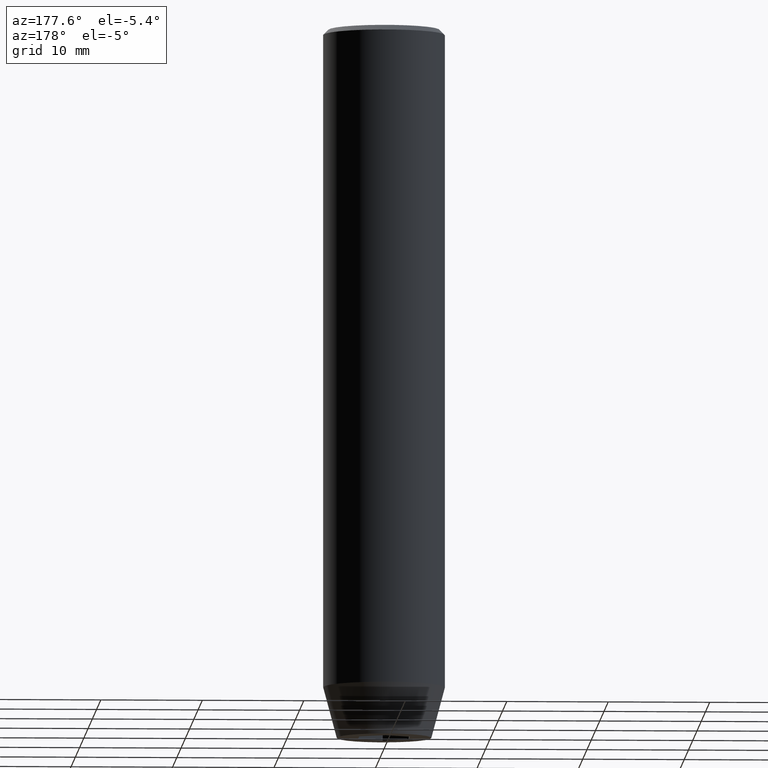
[diagram: clean part render]
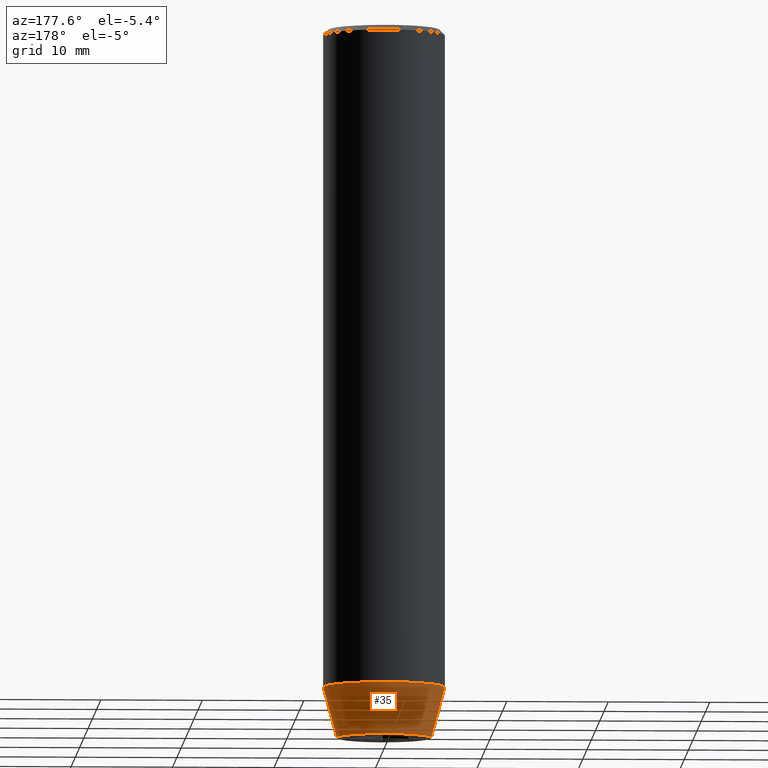
[diagram: same view with one face highlighted and labeled with its STEP entity id]
A machine part, auxiliary view. The second image highlights one B-rep face of the part: STEP entity #35.
In plain terms, the highlighted conical surface has half-angle 15 deg.
Its self-contained STEP definition (entity closure, byte-faithful):
#6 = EDGE_CURVE ( 'NONE', #112, #92, #149, .T. ) ;
#22 = AXIS2_PLACEMENT_3D ( 'NONE', #339, #251, #110 ) ;
#24 = VECTOR ( 'NONE', #531, 1000.000000000000114 ) ;
#28 = VERTEX_POINT ( 'NONE', #214 ) ;
#32 = CARTESIAN_POINT ( 'NONE',  ( 6.000000000000000000, 0.000000000000000000, -65.00000000000000000 ) ) ;
#35 = ADVANCED_FACE ( 'NONE', ( #385 ), #104, .T. ) ;
#65 = DIRECTION ( 'NONE',  ( 1.000000000000000000, 0.000000000000000000, 0.000000000000000000 ) ) ;
#67 = CARTESIAN_POINT ( 'NONE',  ( 0.000000000000000000, 0.000000000000000000, -65.00000000000000000 ) ) ;
#69 = ORIENTED_EDGE ( 'NONE', *, *, #70, .F. ) ;
#70 = EDGE_CURVE ( 'NONE', #28, #340, #118, .T. ) ;
#76 = DIRECTION ( 'NONE',  ( 1.000000000000000000, 0.000000000000000000, 0.000000000000000000 ) ) ;
#81 = VECTOR ( 'NONE', #473, 1000.000000000000114 ) ;
#85 = LINE ( 'NONE', #32, #24 ) ;
#92 = VERTEX_POINT ( 'NONE', #522 ) ;
#100 = LINE ( 'NONE', #562, #81 ) ;
#104 = CONICAL_SURFACE ( 'NONE', #381, 6.000000000000000000, 0.2617993877991502405 ) ;
#107 = ORIENTED_EDGE ( 'NONE', *, *, #6, .T. ) ;
#110 = DIRECTION ( 'NONE',  ( 1.000000000000000000, 0.000000000000000000, 0.000000000000000000 ) ) ;
#112 = VERTEX_POINT ( 'NONE', #174 ) ;
#118 = CIRCLE ( 'NONE', #330, 6.000000000000000000 ) ;
#149 = CIRCLE ( 'NONE', #22, 4.660254037844381081 ) ;
#174 = CARTESIAN_POINT ( 'NONE',  ( 4.660254037844381081, 0.000000000000000000, -70.00000000000000000 ) ) ;
#181 = EDGE_LOOP ( 'NONE', ( #107, #329, #69, #493 ) ) ;
#202 = DIRECTION ( 'NONE',  ( -0.000000000000000000, -0.000000000000000000, 1.000000000000000000 ) ) ;
#214 = CARTESIAN_POINT ( 'NONE',  ( 6.000000000000000000, 0.000000000000000000, -65.00000000000000000 ) ) ;
#247 = EDGE_CURVE ( 'NONE', #112, #28, #85, .T. ) ;
#249 = DIRECTION ( 'NONE',  ( -0.000000000000000000, -0.000000000000000000, 1.000000000000000000 ) ) ;
#251 = DIRECTION ( 'NONE',  ( -0.000000000000000000, -0.000000000000000000, 1.000000000000000000 ) ) ;
#329 = ORIENTED_EDGE ( 'NONE', *, *, #444, .T. ) ;
#330 = AXIS2_PLACEMENT_3D ( 'NONE', #485, #202, #76 ) ;
#332 = CARTESIAN_POINT ( 'NONE',  ( -6.000000000000000000, 7.347880794884119736E-16, -65.00000000000000000 ) ) ;
#339 = CARTESIAN_POINT ( 'NONE',  ( 0.000000000000000000, 0.000000000000000000, -70.00000000000000000 ) ) ;
#340 = VERTEX_POINT ( 'NONE', #332 ) ;
#381 = AXIS2_PLACEMENT_3D ( 'NONE', #67, #249, #65 ) ;
#385 = FACE_OUTER_BOUND ( 'NONE', #181, .T. ) ;
#444 = EDGE_CURVE ( 'NONE', #92, #340, #100, .T. ) ;
#473 = DIRECTION ( 'NONE',  ( -0.2588190451025214611, 3.169619151431774186E-17, 0.9659258262890679791 ) ) ;
#485 = CARTESIAN_POINT ( 'NONE',  ( 0.000000000000000000, 0.000000000000000000, -65.00000000000000000 ) ) ;
#493 = ORIENTED_EDGE ( 'NONE', *, *, #247, .F. ) ;
#522 = CARTESIAN_POINT ( 'NONE',  ( -4.660254037844381081, 6.527522992771884330E-16, -70.00000000000000000 ) ) ;
#531 = DIRECTION ( 'NONE',  ( 0.2588190451025214611, 0.000000000000000000, 0.9659258262890679791 ) ) ;
#562 = CARTESIAN_POINT ( 'NONE',  ( -6.000000000000000000, 7.347880794884119736E-16, -65.00000000000000000 ) ) ;